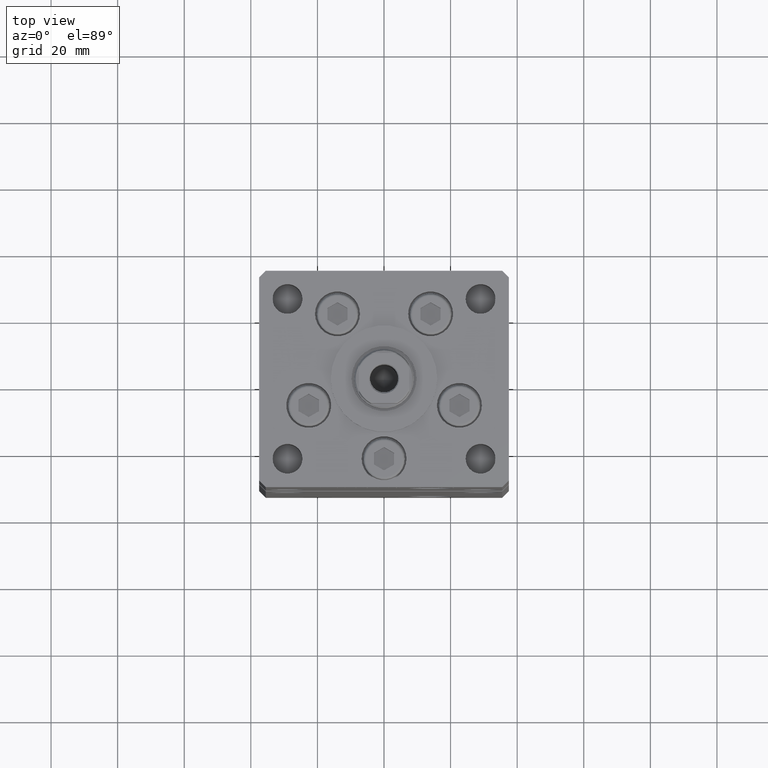
[diagram: clean part render]
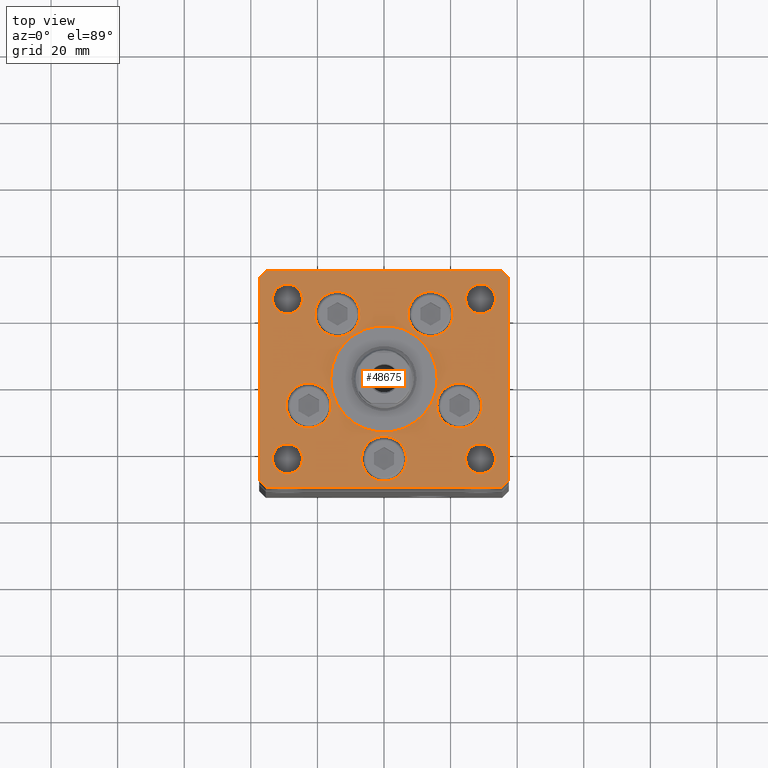
[diagram: same view with one face highlighted and labeled with its STEP entity id]
A machine part, top view. The second image highlights one B-rep face of the part: STEP entity #48675.
In plain terms, the highlighted planar face has unit normal (0, 0, 1).
Its self-contained STEP definition (entity closure, byte-faithful):
#8 = CIRCLE ( 'NONE', #15461, 6.749999999999999112 ) ;
#310 = CARTESIAN_POINT ( 'NONE',  ( -33.50000000000000000, -23.99999999999999645, 0.000000000000000000 ) ) ;
#1126 = EDGE_LOOP ( 'NONE', ( #33755, #36278 ) ) ;
#1554 = LINE ( 'NONE', #42430, #48682 ) ;
#1573 = CARTESIAN_POINT ( 'NONE',  ( 0.000000000000000000, -24.00000000000001066, 0.000000000000000000 ) ) ;
#1638 = CARTESIAN_POINT ( 'NONE',  ( 33.50000000000000000, -23.99999999999999645, 0.000000000000000000 ) ) ;
#1772 = AXIS2_PLACEMENT_3D ( 'NONE', #36159, #15734, #24069 ) ;
#1824 = DIRECTION ( 'NONE',  ( 0.7071067811865463515, 0.7071067811865487940, 0.000000000000000000 ) ) ;
#1861 = AXIS2_PLACEMENT_3D ( 'NONE', #19892, #12052, #44580 ) ;
#1917 = ORIENTED_EDGE ( 'NONE', *, *, #9387, .F. ) ;
#2030 = DIRECTION ( 'NONE',  ( 1.000000000000000000, 0.000000000000000000, 0.000000000000000000 ) ) ;
#2460 = LINE ( 'NONE', #47890, #7525 ) ;
#3006 = CARTESIAN_POINT ( 'NONE',  ( -37.50000000000000000, -30.50000000000004263, 0.000000000000000000 ) ) ;
#3184 = AXIS2_PLACEMENT_3D ( 'NONE', #50280, #10198, #22057 ) ;
#3188 = ORIENTED_EDGE ( 'NONE', *, *, #36182, .T. ) ;
#3227 = DIRECTION ( 'NONE',  ( 0.000000000000000000, 0.000000000000000000, 1.000000000000000000 ) ) ;
#3343 = FACE_OUTER_BOUND ( 'NONE', #27585, .T. ) ;
#3397 = CARTESIAN_POINT ( 'NONE',  ( -35.50000000000000711, 32.49999999999997868, 0.000000000000000000 ) ) ;
#3566 = CARTESIAN_POINT ( 'NONE',  ( 22.62741699796953299, -8.000000000000000000, 0.000000000000000000 ) ) ;
#3618 = CARTESIAN_POINT ( 'NONE',  ( 37.50000000000000711, 30.50000000000001421, 0.000000000000000000 ) ) ;
#3727 = VERTEX_POINT ( 'NONE', #24447 ) ;
#3841 = VERTEX_POINT ( 'NONE', #39454 ) ;
#3903 = VERTEX_POINT ( 'NONE', #53127 ) ;
#4128 = ORIENTED_EDGE ( 'NONE', *, *, #14831, .F. ) ;
#4561 = CARTESIAN_POINT ( 'NONE',  ( 15.87741699796952410, -8.000000000000000000, 0.000000000000000000 ) ) ;
#4562 = EDGE_CURVE ( 'NONE', #51685, #27400, #8, .T. ) ;
#4633 = ORIENTED_EDGE ( 'NONE', *, *, #10290, .F. ) ;
#4755 = DIRECTION ( 'NONE',  ( 0.000000000000000000, 0.000000000000000000, 1.000000000000000000 ) ) ;
#4790 = VECTOR ( 'NONE', #10580, 1000.000000000000000 ) ;
#5261 = EDGE_CURVE ( 'NONE', #27400, #51685, #27513, .T. ) ;
#5624 = DIRECTION ( 'NONE',  ( 1.000000000000000000, 0.000000000000000000, 0.000000000000000000 ) ) ;
#5877 = EDGE_CURVE ( 'NONE', #21240, #47071, #35278, .T. ) ;
#5992 = CARTESIAN_POINT ( 'NONE',  ( -37.50000000000000000, -30.50000000000004263, 0.000000000000000000 ) ) ;
#6232 = ORIENTED_EDGE ( 'NONE', *, *, #38705, .T. ) ;
#6249 = CARTESIAN_POINT ( 'NONE',  ( -35.50000000000001421, -32.50000000000000711, 0.000000000000000000 ) ) ;
#7373 = FACE_BOUND ( 'NONE', #43997, .T. ) ;
#7525 = VECTOR ( 'NONE', #19415, 1000.000000000000000 ) ;
#7657 = VERTEX_POINT ( 'NONE', #4561 ) ;
#7765 = CARTESIAN_POINT ( 'NONE',  ( -6.750000000001552536, -24.00000000000001066, 0.000000000000000000 ) ) ;
#7783 = AXIS2_PLACEMENT_3D ( 'NONE', #51667, #3227, #23173 ) ;
#7837 = DIRECTION ( 'NONE',  ( 0.000000000000000000, 0.000000000000000000, 1.000000000000000000 ) ) ;
#7924 = ORIENTED_EDGE ( 'NONE', *, *, #49086, .F. ) ;
#8386 = ORIENTED_EDGE ( 'NONE', *, *, #53157, .F. ) ;
#8704 = CARTESIAN_POINT ( 'NONE',  ( 0.000000000000000000, -24.00000000000001066, 0.000000000000000000 ) ) ;
#8876 = EDGE_LOOP ( 'NONE', ( #21987, #20080 ) ) ;
#9239 = LINE ( 'NONE', #25679, #47464 ) ;
#9329 = CIRCLE ( 'NONE', #25672, 4.499999999999997335 ) ;
#9387 = EDGE_CURVE ( 'NONE', #24894, #3903, #22496, .T. ) ;
#9589 = CARTESIAN_POINT ( 'NONE',  ( -7.241068579633241242, 19.50000000000000000, 0.000000000000000000 ) ) ;
#9617 = DIRECTION ( 'NONE',  ( -0.000000000000000000, -0.000000000000000000, -1.000000000000000000 ) ) ;
#9862 = ORIENTED_EDGE ( 'NONE', *, *, #16407, .T. ) ;
#9974 = DIRECTION ( 'NONE',  ( 0.000000000000000000, 0.000000000000000000, 1.000000000000000000 ) ) ;
#10064 = VERTEX_POINT ( 'NONE', #6249 ) ;
#10198 = DIRECTION ( 'NONE',  ( -0.000000000000000000, -0.000000000000000000, -1.000000000000000000 ) ) ;
#10290 = EDGE_CURVE ( 'NONE', #23771, #27055, #31964, .T. ) ;
#10549 = AXIS2_PLACEMENT_3D ( 'NONE', #21633, #18670, #30211 ) ;
#10580 = DIRECTION ( 'NONE',  ( -0.7071067811865524577, 0.7071067811865426878, 0.000000000000000000 ) ) ;
#10706 = CARTESIAN_POINT ( 'NONE',  ( 24.50000000000000000, 24.00000000000000355, 0.000000000000000000 ) ) ;
#11430 = FACE_BOUND ( 'NONE', #41614, .T. ) ;
#11491 = CIRCLE ( 'NONE', #51006, 6.749999999999997335 ) ;
#11587 = CARTESIAN_POINT ( 'NONE',  ( 24.50000000000000711, -23.99999999999999645, 0.000000000000000000 ) ) ;
#11688 = FACE_BOUND ( 'NONE', #51352, .T. ) ;
#11695 = CARTESIAN_POINT ( 'NONE',  ( -29.37741699796953654, -8.000000000000000000, 0.000000000000000000 ) ) ;
#11749 = DIRECTION ( 'NONE',  ( 0.000000000000000000, 0.000000000000000000, 1.000000000000000000 ) ) ;
#12052 = DIRECTION ( 'NONE',  ( 0.000000000000000000, 0.000000000000000000, 1.000000000000000000 ) ) ;
#12174 = AXIS2_PLACEMENT_3D ( 'NONE', #26853, #38662, #14484 ) ;
#12458 = CARTESIAN_POINT ( 'NONE',  ( 0.000000000000000000, -6.938893903907228378E-15, 0.000000000000000000 ) ) ;
#12658 = EDGE_CURVE ( 'NONE', #47175, #48555, #25170, .T. ) ;
#12691 = CARTESIAN_POINT ( 'NONE',  ( -13.99106857963324124, 19.50000000000000000, 0.000000000000000000 ) ) ;
#12812 = VERTEX_POINT ( 'NONE', #310 ) ;
#13105 = CARTESIAN_POINT ( 'NONE',  ( -29.00000000000000000, -23.99999999999999645, 0.000000000000000000 ) ) ;
#13143 = AXIS2_PLACEMENT_3D ( 'NONE', #51291, #26290, #51029 ) ;
#13438 = VERTEX_POINT ( 'NONE', #41034 ) ;
#13632 = ORIENTED_EDGE ( 'NONE', *, *, #18517, .T. ) ;
#13731 = VECTOR ( 'NONE', #52645, 1000.000000000000000 ) ;
#14249 = CARTESIAN_POINT ( 'NONE',  ( 13.99106857963324124, 19.50000000000000000, 0.000000000000000000 ) ) ;
#14468 = CIRCLE ( 'NONE', #39321, 6.750000000000009770 ) ;
#14484 = DIRECTION ( 'NONE',  ( -1.000000000000000000, 0.000000000000000000, 0.000000000000000000 ) ) ;
#14787 = EDGE_LOOP ( 'NONE', ( #39527, #38802 ) ) ;
#14831 = EDGE_CURVE ( 'NONE', #26394, #3727, #23410, .T. ) ;
#14921 = DIRECTION ( 'NONE',  ( 1.000000000000000000, 0.000000000000000000, 0.000000000000000000 ) ) ;
#15000 = CIRCLE ( 'NONE', #45010, 4.500000000000000888 ) ;
#15404 = EDGE_CURVE ( 'NONE', #3727, #26394, #11491, .T. ) ;
#15461 = AXIS2_PLACEMENT_3D ( 'NONE', #34099, #30063, #24987 ) ;
#15501 = VECTOR ( 'NONE', #22426, 1000.000000000000000 ) ;
#15734 = DIRECTION ( 'NONE',  ( -0.000000000000000000, 0.000000000000000000, 1.000000000000000000 ) ) ;
#15901 = AXIS2_PLACEMENT_3D ( 'NONE', #45063, #11749, #41035 ) ;
#15988 = FACE_BOUND ( 'NONE', #8876, .T. ) ;
#16082 = CARTESIAN_POINT ( 'NONE',  ( -24.50000000000000000, 24.00000000000000711, 0.000000000000000000 ) ) ;
#16407 = EDGE_CURVE ( 'NONE', #3841, #46509, #9239, .T. ) ;
#16457 = DIRECTION ( 'NONE',  ( 1.000000000000000000, 0.000000000000000000, 0.000000000000000000 ) ) ;
#16467 = CARTESIAN_POINT ( 'NONE',  ( 13.99106857963324124, 19.50000000000000000, 0.000000000000000000 ) ) ;
#17245 = ORIENTED_EDGE ( 'NONE', *, *, #5261, .F. ) ;
#17603 = CIRCLE ( 'NONE', #15901, 4.500000000000000888 ) ;
#18065 = EDGE_CURVE ( 'NONE', #7657, #39544, #32036, .T. ) ;
#18517 = EDGE_CURVE ( 'NONE', #10064, #47108, #46536, .T. ) ;
#18670 = DIRECTION ( 'NONE',  ( 0.000000000000000000, 0.000000000000000000, 1.000000000000000000 ) ) ;
#19187 = EDGE_CURVE ( 'NONE', #48555, #47175, #41539, .T. ) ;
#19415 = DIRECTION ( 'NONE',  ( -1.000000000000000000, -1.954618001100627573E-16, 0.000000000000000000 ) ) ;
#19783 = PLANE ( 'NONE',  #1772 ) ;
#19892 = CARTESIAN_POINT ( 'NONE',  ( 29.00000000000000000, 24.00000000000000355, 0.000000000000000000 ) ) ;
#19957 = DIRECTION ( 'NONE',  ( -1.000000000000000000, 0.000000000000000000, 0.000000000000000000 ) ) ;
#20073 = VECTOR ( 'NONE', #20759, 1000.000000000000000 ) ;
#20080 = ORIENTED_EDGE ( 'NONE', *, *, #18065, .F. ) ;
#20438 = CARTESIAN_POINT ( 'NONE',  ( -37.50000000000001421, 30.50000000000000000, 0.000000000000000000 ) ) ;
#20587 = VERTEX_POINT ( 'NONE', #47835 ) ;
#20615 = LINE ( 'NONE', #3397, #24506 ) ;
#20759 = DIRECTION ( 'NONE',  ( 1.000000000000000000, 1.172770800660376149E-15, 0.000000000000000000 ) ) ;
#20884 = DIRECTION ( 'NONE',  ( 0.000000000000000000, 0.000000000000000000, 1.000000000000000000 ) ) ;
#21240 = VERTEX_POINT ( 'NONE', #36346 ) ;
#21633 = CARTESIAN_POINT ( 'NONE',  ( -13.99106857963324124, 19.50000000000000000, 0.000000000000000000 ) ) ;
#21651 = DIRECTION ( 'NONE',  ( 0.000000000000000000, 1.000000000000000000, 0.000000000000000000 ) ) ;
#21817 = EDGE_CURVE ( 'NONE', #3903, #24894, #15000, .T. ) ;
#21912 = CARTESIAN_POINT ( 'NONE',  ( -16.00000000000000355, -6.938893903907228378E-15, 0.000000000000000000 ) ) ;
#21987 = ORIENTED_EDGE ( 'NONE', *, *, #37435, .F. ) ;
#22057 = DIRECTION ( 'NONE',  ( -1.000000000000000000, 0.000000000000000000, 0.000000000000000000 ) ) ;
#22426 = DIRECTION ( 'NONE',  ( 0.7071067811865512365, -0.7071067811865439090, 0.000000000000000000 ) ) ;
#22496 = CIRCLE ( 'NONE', #1861, 4.500000000000000888 ) ;
#22540 = EDGE_CURVE ( 'NONE', #12812, #13438, #17603, .T. ) ;
#22744 = CARTESIAN_POINT ( 'NONE',  ( 29.37741699796954364, -8.000000000000000000, 0.000000000000000000 ) ) ;
#22960 = ORIENTED_EDGE ( 'NONE', *, *, #48126, .T. ) ;
#23017 = DIRECTION ( 'NONE',  ( 0.000000000000000000, 0.000000000000000000, 1.000000000000000000 ) ) ;
#23104 = CARTESIAN_POINT ( 'NONE',  ( 35.50000000000000000, 32.49999999999999289, 0.000000000000000000 ) ) ;
#23173 = DIRECTION ( 'NONE',  ( 1.000000000000000000, 0.000000000000000000, 0.000000000000000000 ) ) ;
#23410 = CIRCLE ( 'NONE', #37113, 6.749999999999997335 ) ;
#23771 = VERTEX_POINT ( 'NONE', #21912 ) ;
#24069 = DIRECTION ( 'NONE',  ( 1.000000000000000000, 0.000000000000000000, 0.000000000000000000 ) ) ;
#24208 = EDGE_CURVE ( 'NONE', #28051, #35483, #20615, .T. ) ;
#24447 = CARTESIAN_POINT ( 'NONE',  ( 7.241068579633242130, 19.50000000000000000, 0.000000000000000000 ) ) ;
#24506 = VECTOR ( 'NONE', #52617, 1000.000000000000000 ) ;
#24628 = ORIENTED_EDGE ( 'NONE', *, *, #27317, .F. ) ;
#24894 = VERTEX_POINT ( 'NONE', #10706 ) ;
#24987 = DIRECTION ( 'NONE',  ( 1.000000000000000000, 0.000000000000000000, 0.000000000000000000 ) ) ;
#25076 = ORIENTED_EDGE ( 'NONE', *, *, #34245, .T. ) ;
#25139 = DIRECTION ( 'NONE',  ( 1.000000000000000000, 0.000000000000000000, 0.000000000000000000 ) ) ;
#25170 = CIRCLE ( 'NONE', #10549, 6.750000000000000000 ) ;
#25356 = EDGE_CURVE ( 'NONE', #46509, #35617, #42573, .T. ) ;
#25442 = CARTESIAN_POINT ( 'NONE',  ( -22.62741699796953299, -8.000000000000000000, 0.000000000000000000 ) ) ;
#25518 = CARTESIAN_POINT ( 'NONE',  ( -15.87741699796953476, -8.000000000000000000, 0.000000000000000000 ) ) ;
#25638 = CIRCLE ( 'NONE', #53054, 4.500000000000000888 ) ;
#25672 = AXIS2_PLACEMENT_3D ( 'NONE', #39047, #47387, #19957 ) ;
#25679 = CARTESIAN_POINT ( 'NONE',  ( 37.50000000000000711, -30.49999999999992895, 0.000000000000000000 ) ) ;
#25696 = EDGE_LOOP ( 'NONE', ( #42597, #32459 ) ) ;
#25747 = DIRECTION ( 'NONE',  ( 1.000000000000000000, 0.000000000000000000, 0.000000000000000000 ) ) ;
#26125 = CARTESIAN_POINT ( 'NONE',  ( -35.50000000000001421, -32.50000000000000711, 0.000000000000000000 ) ) ;
#26290 = DIRECTION ( 'NONE',  ( 0.000000000000000000, 0.000000000000000000, 1.000000000000000000 ) ) ;
#26394 = VERTEX_POINT ( 'NONE', #33668 ) ;
#26639 = AXIS2_PLACEMENT_3D ( 'NONE', #25442, #20884, #49357 ) ;
#26711 = CIRCLE ( 'NONE', #7783, 16.00000000000000355 ) ;
#26853 = CARTESIAN_POINT ( 'NONE',  ( -29.00000000000000000, 24.00000000000000711, 0.000000000000000000 ) ) ;
#27055 = VERTEX_POINT ( 'NONE', #27456 ) ;
#27317 = EDGE_CURVE ( 'NONE', #30181, #20587, #34048, .T. ) ;
#27400 = VERTEX_POINT ( 'NONE', #11695 ) ;
#27456 = CARTESIAN_POINT ( 'NONE',  ( 16.00000000000000355, -4.979459025271462852E-15, 0.000000000000000000 ) ) ;
#27513 = CIRCLE ( 'NONE', #26639, 6.749999999999999112 ) ;
#27585 = EDGE_LOOP ( 'NONE', ( #22960, #13632, #25076, #9862, #32126, #3188, #40408, #45905 ) ) ;
#27816 = DIRECTION ( 'NONE',  ( 1.000000000000000000, 0.000000000000000000, 0.000000000000000000 ) ) ;
#27834 = FACE_BOUND ( 'NONE', #32677, .T. ) ;
#28051 = VERTEX_POINT ( 'NONE', #40332 ) ;
#28160 = CARTESIAN_POINT ( 'NONE',  ( -37.50000000000001421, 30.50000000000000000, 0.000000000000000000 ) ) ;
#29188 = EDGE_CURVE ( 'NONE', #35345, #41792, #46984, .T. ) ;
#29769 = CARTESIAN_POINT ( 'NONE',  ( 35.50000000000001421, -32.49999999999992184, 0.000000000000000000 ) ) ;
#30063 = DIRECTION ( 'NONE',  ( 0.000000000000000000, 0.000000000000000000, 1.000000000000000000 ) ) ;
#30181 = VERTEX_POINT ( 'NONE', #7765 ) ;
#30202 = LINE ( 'NONE', #5992, #15501 ) ;
#30211 = DIRECTION ( 'NONE',  ( 1.000000000000000000, 0.000000000000000000, 0.000000000000000000 ) ) ;
#30228 = AXIS2_PLACEMENT_3D ( 'NONE', #12458, #40162, #27816 ) ;
#30385 = AXIS2_PLACEMENT_3D ( 'NONE', #12691, #7837, #16457 ) ;
#30979 = AXIS2_PLACEMENT_3D ( 'NONE', #40889, #9617, #52997 ) ;
#31307 = ORIENTED_EDGE ( 'NONE', *, *, #15404, .F. ) ;
#31868 = FACE_BOUND ( 'NONE', #48287, .T. ) ;
#31964 = CIRCLE ( 'NONE', #30228, 16.00000000000000355 ) ;
#32036 = CIRCLE ( 'NONE', #13143, 6.750000000000009770 ) ;
#32126 = ORIENTED_EDGE ( 'NONE', *, *, #25356, .T. ) ;
#32334 = DIRECTION ( 'NONE',  ( 0.000000000000000000, 0.000000000000000000, 1.000000000000000000 ) ) ;
#32459 = ORIENTED_EDGE ( 'NONE', *, *, #22540, .F. ) ;
#32600 = DIRECTION ( 'NONE',  ( 1.000000000000000000, 0.000000000000000000, 0.000000000000000000 ) ) ;
#32677 = EDGE_LOOP ( 'NONE', ( #8386, #24628 ) ) ;
#32731 = LINE ( 'NONE', #28160, #13731 ) ;
#33179 = VERTEX_POINT ( 'NONE', #3006 ) ;
#33594 = DIRECTION ( 'NONE',  ( 0.000000000000000000, 0.000000000000000000, 1.000000000000000000 ) ) ;
#33668 = CARTESIAN_POINT ( 'NONE',  ( 20.74106857963323947, 19.50000000000000000, 0.000000000000000000 ) ) ;
#33755 = ORIENTED_EDGE ( 'NONE', *, *, #51745, .T. ) ;
#34048 = CIRCLE ( 'NONE', #46944, 6.750000000001552536 ) ;
#34099 = CARTESIAN_POINT ( 'NONE',  ( -22.62741699796953299, -8.000000000000000000, 0.000000000000000000 ) ) ;
#34245 = EDGE_CURVE ( 'NONE', #47108, #3841, #1554, .T. ) ;
#34310 = CARTESIAN_POINT ( 'NONE',  ( 29.00000000000000000, 24.00000000000000355, 0.000000000000000000 ) ) ;
#35278 = CIRCLE ( 'NONE', #30979, 4.500000000000000888 ) ;
#35345 = VERTEX_POINT ( 'NONE', #1638 ) ;
#35480 = DIRECTION ( 'NONE',  ( 0.000000000000000000, 0.000000000000000000, 1.000000000000000000 ) ) ;
#35483 = VERTEX_POINT ( 'NONE', #20438 ) ;
#35617 = VERTEX_POINT ( 'NONE', #23104 ) ;
#36026 = ORIENTED_EDGE ( 'NONE', *, *, #4562, .F. ) ;
#36159 = CARTESIAN_POINT ( 'NONE',  ( 0.000000000000000000, 0.000000000000000000, 0.000000000000000000 ) ) ;
#36182 = EDGE_CURVE ( 'NONE', #35617, #28051, #2460, .T. ) ;
#36278 = ORIENTED_EDGE ( 'NONE', *, *, #5877, .T. ) ;
#36346 = CARTESIAN_POINT ( 'NONE',  ( -33.50000000000000000, 24.00000000000000711, 0.000000000000000000 ) ) ;
#36747 = EDGE_CURVE ( 'NONE', #13438, #12812, #25638, .T. ) ;
#37113 = AXIS2_PLACEMENT_3D ( 'NONE', #16467, #32334, #32600 ) ;
#37435 = EDGE_CURVE ( 'NONE', #39544, #7657, #14468, .T. ) ;
#37884 = DIRECTION ( 'NONE',  ( 1.000000000000000000, 0.000000000000000000, 0.000000000000000000 ) ) ;
#38539 = CARTESIAN_POINT ( 'NONE',  ( 37.50000000000000711, 30.50000000000001421, 0.000000000000000000 ) ) ;
#38662 = DIRECTION ( 'NONE',  ( -0.000000000000000000, -0.000000000000000000, -1.000000000000000000 ) ) ;
#38705 = EDGE_CURVE ( 'NONE', #41792, #35345, #9329, .T. ) ;
#38802 = ORIENTED_EDGE ( 'NONE', *, *, #19187, .F. ) ;
#39047 = CARTESIAN_POINT ( 'NONE',  ( 29.00000000000000355, -23.99999999999999645, 0.000000000000000000 ) ) ;
#39233 = EDGE_LOOP ( 'NONE', ( #36026, #17245 ) ) ;
#39321 = AXIS2_PLACEMENT_3D ( 'NONE', #3566, #51753, #14921 ) ;
#39454 = CARTESIAN_POINT ( 'NONE',  ( 37.50000000000000711, -30.49999999999992895, 0.000000000000000000 ) ) ;
#39527 = ORIENTED_EDGE ( 'NONE', *, *, #12658, .F. ) ;
#39544 = VERTEX_POINT ( 'NONE', #22744 ) ;
#39630 = CIRCLE ( 'NONE', #12174, 4.500000000000000888 ) ;
#40162 = DIRECTION ( 'NONE',  ( 0.000000000000000000, 0.000000000000000000, 1.000000000000000000 ) ) ;
#40332 = CARTESIAN_POINT ( 'NONE',  ( -35.50000000000000711, 32.49999999999997868, 0.000000000000000000 ) ) ;
#40408 = ORIENTED_EDGE ( 'NONE', *, *, #24208, .T. ) ;
#40705 = CARTESIAN_POINT ( 'NONE',  ( -20.74106857963324302, 19.50000000000000000, 0.000000000000000000 ) ) ;
#40889 = CARTESIAN_POINT ( 'NONE',  ( -29.00000000000000000, 24.00000000000000711, 0.000000000000000000 ) ) ;
#41034 = CARTESIAN_POINT ( 'NONE',  ( -24.50000000000000000, -23.99999999999999645, 0.000000000000000000 ) ) ;
#41035 = DIRECTION ( 'NONE',  ( 1.000000000000000000, 0.000000000000000000, 0.000000000000000000 ) ) ;
#41539 = CIRCLE ( 'NONE', #30385, 6.750000000000000000 ) ;
#41614 = EDGE_LOOP ( 'NONE', ( #4128, #31307 ) ) ;
#41792 = VERTEX_POINT ( 'NONE', #11587 ) ;
#42430 = CARTESIAN_POINT ( 'NONE',  ( 35.50000000000001421, -32.49999999999992184, 0.000000000000000000 ) ) ;
#42573 = LINE ( 'NONE', #38539, #4790 ) ;
#42597 = ORIENTED_EDGE ( 'NONE', *, *, #36747, .F. ) ;
#43997 = EDGE_LOOP ( 'NONE', ( #52275, #1917 ) ) ;
#44221 = FACE_BOUND ( 'NONE', #39233, .T. ) ;
#44580 = DIRECTION ( 'NONE',  ( 1.000000000000000000, 0.000000000000000000, 0.000000000000000000 ) ) ;
#45010 = AXIS2_PLACEMENT_3D ( 'NONE', #34310, #23017, #2030 ) ;
#45063 = CARTESIAN_POINT ( 'NONE',  ( -29.00000000000000000, -23.99999999999999645, 0.000000000000000000 ) ) ;
#45905 = ORIENTED_EDGE ( 'NONE', *, *, #46111, .T. ) ;
#46111 = EDGE_CURVE ( 'NONE', #35483, #33179, #32731, .T. ) ;
#46509 = VERTEX_POINT ( 'NONE', #3618 ) ;
#46536 = LINE ( 'NONE', #26125, #20073 ) ;
#46845 = ORIENTED_EDGE ( 'NONE', *, *, #29188, .T. ) ;
#46944 = AXIS2_PLACEMENT_3D ( 'NONE', #1573, #33594, #37884 ) ;
#46984 = CIRCLE ( 'NONE', #3184, 4.499999999999997335 ) ;
#47071 = VERTEX_POINT ( 'NONE', #16082 ) ;
#47108 = VERTEX_POINT ( 'NONE', #29769 ) ;
#47175 = VERTEX_POINT ( 'NONE', #9589 ) ;
#47387 = DIRECTION ( 'NONE',  ( -0.000000000000000000, -0.000000000000000000, -1.000000000000000000 ) ) ;
#47421 = CIRCLE ( 'NONE', #52553, 6.750000000001552536 ) ;
#47464 = VECTOR ( 'NONE', #21651, 1000.000000000000000 ) ;
#47835 = CARTESIAN_POINT ( 'NONE',  ( 6.750000000001552536, -24.00000000000001066, 0.000000000000000000 ) ) ;
#47890 = CARTESIAN_POINT ( 'NONE',  ( 35.50000000000000000, 32.49999999999999289, 0.000000000000000000 ) ) ;
#48126 = EDGE_CURVE ( 'NONE', #33179, #10064, #30202, .T. ) ;
#48266 = FACE_BOUND ( 'NONE', #14787, .T. ) ;
#48287 = EDGE_LOOP ( 'NONE', ( #4633, #7924 ) ) ;
#48521 = FACE_BOUND ( 'NONE', #25696, .T. ) ;
#48555 = VERTEX_POINT ( 'NONE', #40705 ) ;
#48675 = ADVANCED_FACE ( 'NONE', ( #31868, #48266, #11430, #15988, #27834, #44221, #52564, #7373, #48521, #3343, #11688 ), #19783, .T. ) ;
#48682 = VECTOR ( 'NONE', #1824, 1000.000000000000000 ) ;
#49086 = EDGE_CURVE ( 'NONE', #27055, #23771, #26711, .T. ) ;
#49357 = DIRECTION ( 'NONE',  ( 1.000000000000000000, 0.000000000000000000, 0.000000000000000000 ) ) ;
#50280 = CARTESIAN_POINT ( 'NONE',  ( 29.00000000000000355, -23.99999999999999645, 0.000000000000000000 ) ) ;
#51006 = AXIS2_PLACEMENT_3D ( 'NONE', #14249, #35480, #5624 ) ;
#51029 = DIRECTION ( 'NONE',  ( 1.000000000000000000, 0.000000000000000000, 0.000000000000000000 ) ) ;
#51291 = CARTESIAN_POINT ( 'NONE',  ( 22.62741699796953299, -8.000000000000000000, 0.000000000000000000 ) ) ;
#51352 = EDGE_LOOP ( 'NONE', ( #46845, #6232 ) ) ;
#51667 = CARTESIAN_POINT ( 'NONE',  ( 0.000000000000000000, -6.938893903907228378E-15, 0.000000000000000000 ) ) ;
#51685 = VERTEX_POINT ( 'NONE', #25518 ) ;
#51745 = EDGE_CURVE ( 'NONE', #47071, #21240, #39630, .T. ) ;
#51753 = DIRECTION ( 'NONE',  ( 0.000000000000000000, 0.000000000000000000, 1.000000000000000000 ) ) ;
#52275 = ORIENTED_EDGE ( 'NONE', *, *, #21817, .F. ) ;
#52553 = AXIS2_PLACEMENT_3D ( 'NONE', #8704, #9974, #25139 ) ;
#52564 = FACE_BOUND ( 'NONE', #1126, .T. ) ;
#52617 = DIRECTION ( 'NONE',  ( -0.7071067811865524577, -0.7071067811865426878, 0.000000000000000000 ) ) ;
#52645 = DIRECTION ( 'NONE',  ( 2.275047181608926165E-16, -1.000000000000000000, 0.000000000000000000 ) ) ;
#52997 = DIRECTION ( 'NONE',  ( -1.000000000000000000, 0.000000000000000000, 0.000000000000000000 ) ) ;
#53054 = AXIS2_PLACEMENT_3D ( 'NONE', #13105, #4755, #25747 ) ;
#53127 = CARTESIAN_POINT ( 'NONE',  ( 33.50000000000000000, 24.00000000000000355, 0.000000000000000000 ) ) ;
#53157 = EDGE_CURVE ( 'NONE', #20587, #30181, #47421, .T. ) ;